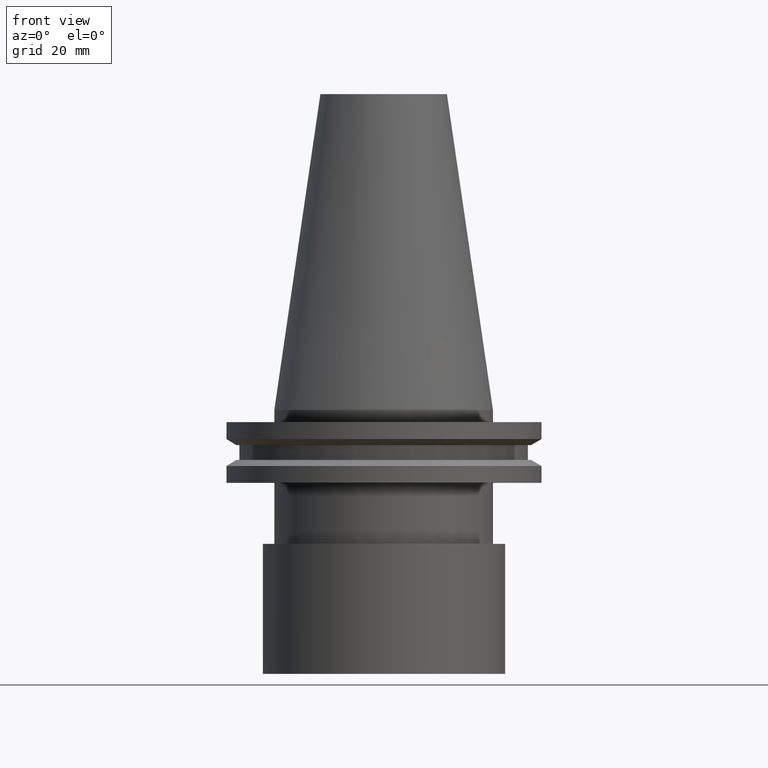
[diagram: clean part render]
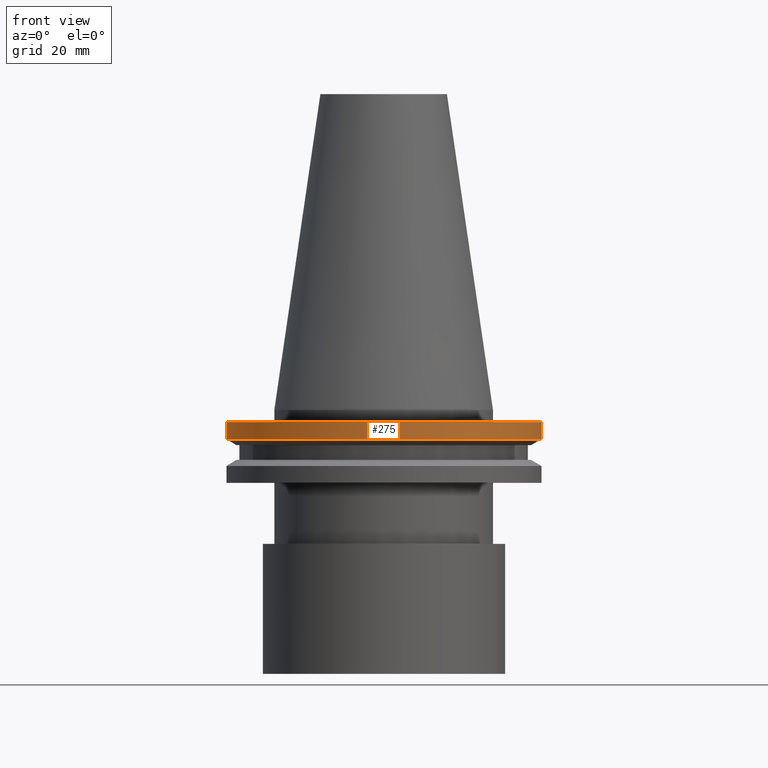
[diagram: same view with one face highlighted and labeled with its STEP entity id]
A machine part, front view. The second image highlights one B-rep face of the part: STEP entity #275.
In plain terms, the highlighted cylindrical surface (bore or boss wall) has radius 41.275 mm, axis along (-0, -0, 1).
Its self-contained STEP definition (entity closure, byte-faithful):
#3 = AXIS2_PLACEMENT_3D ( 'NONE', #253, #117, #25 ) ;
#15 = CARTESIAN_POINT ( 'NONE',  ( 0.000000000000000000, 0.000000000000000000, -7.605276606597321631 ) ) ;
#22 = DIRECTION ( 'NONE',  ( -0.000000000000000000, -0.000000000000000000, 1.000000000000000000 ) ) ;
#25 = DIRECTION ( 'NONE',  ( 1.000000000000000000, 0.000000000000000000, 0.000000000000000000 ) ) ;
#27 = VERTEX_POINT ( 'NONE', #148 ) ;
#57 = CIRCLE ( 'NONE', #276, 41.27499999999999147 ) ;
#58 = FACE_OUTER_BOUND ( 'NONE', #162, .T. ) ;
#86 = DIRECTION ( 'NONE',  ( 1.000000000000000000, 0.000000000000000000, 0.000000000000000000 ) ) ;
#90 = AXIS2_PLACEMENT_3D ( 'NONE', #15, #22, #350 ) ;
#113 = DIRECTION ( 'NONE',  ( -0.000000000000000000, -0.000000000000000000, 1.000000000000000000 ) ) ;
#117 = DIRECTION ( 'NONE',  ( -0.000000000000000000, -0.000000000000000000, 1.000000000000000000 ) ) ;
#148 = CARTESIAN_POINT ( 'NONE',  ( 41.27499999999999147, 0.000000000000000000, -3.174999999999997158 ) ) ;
#162 = EDGE_LOOP ( 'NONE', ( #384 ) ) ;
#170 = CARTESIAN_POINT ( 'NONE',  ( 41.27500000000000568, 0.000000000000000000, -7.605276606597321631 ) ) ;
#204 = FACE_OUTER_BOUND ( 'NONE', #315, .T. ) ;
#226 = CYLINDRICAL_SURFACE ( 'NONE', #3, 41.27499999999999858 ) ;
#236 = EDGE_CURVE ( 'NONE', #326, #326, #282, .T. ) ;
#253 = CARTESIAN_POINT ( 'NONE',  ( 0.000000000000000000, 0.000000000000000000, 82.54999999999999716 ) ) ;
#275 = ADVANCED_FACE ( 'NONE', ( #204, #58 ), #226, .T. ) ;
#276 = AXIS2_PLACEMENT_3D ( 'NONE', #347, #113, #86 ) ;
#282 = CIRCLE ( 'NONE', #90, 41.27500000000000568 ) ;
#308 = EDGE_CURVE ( 'NONE', #27, #27, #57, .T. ) ;
#315 = EDGE_LOOP ( 'NONE', ( #325 ) ) ;
#325 = ORIENTED_EDGE ( 'NONE', *, *, #308, .F. ) ;
#326 = VERTEX_POINT ( 'NONE', #170 ) ;
#347 = CARTESIAN_POINT ( 'NONE',  ( 0.000000000000000000, 0.000000000000000000, -3.174999999999997158 ) ) ;
#350 = DIRECTION ( 'NONE',  ( 1.000000000000000000, 0.000000000000000000, 0.000000000000000000 ) ) ;
#384 = ORIENTED_EDGE ( 'NONE', *, *, #236, .T. ) ;